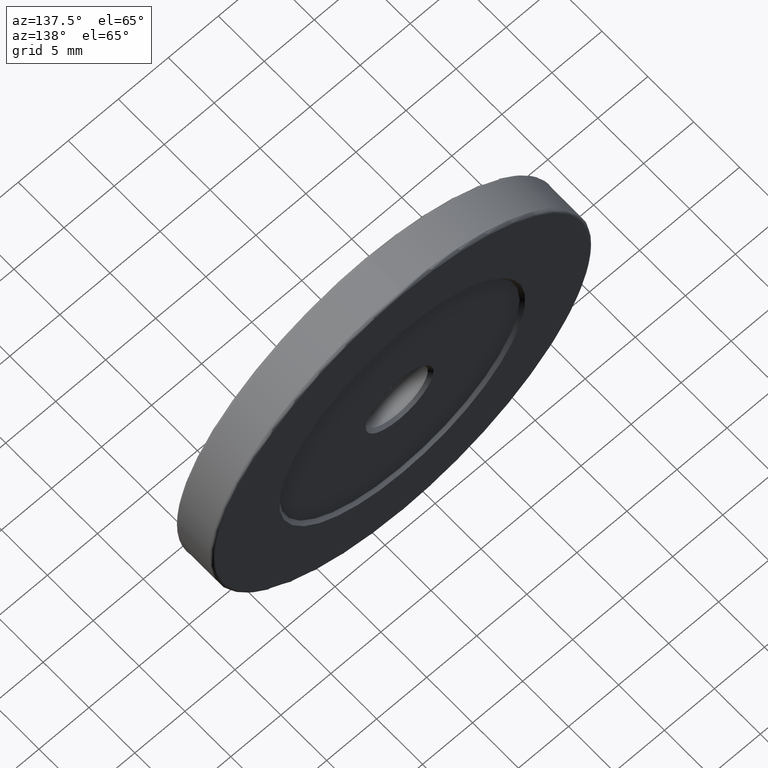
[diagram: clean part render]
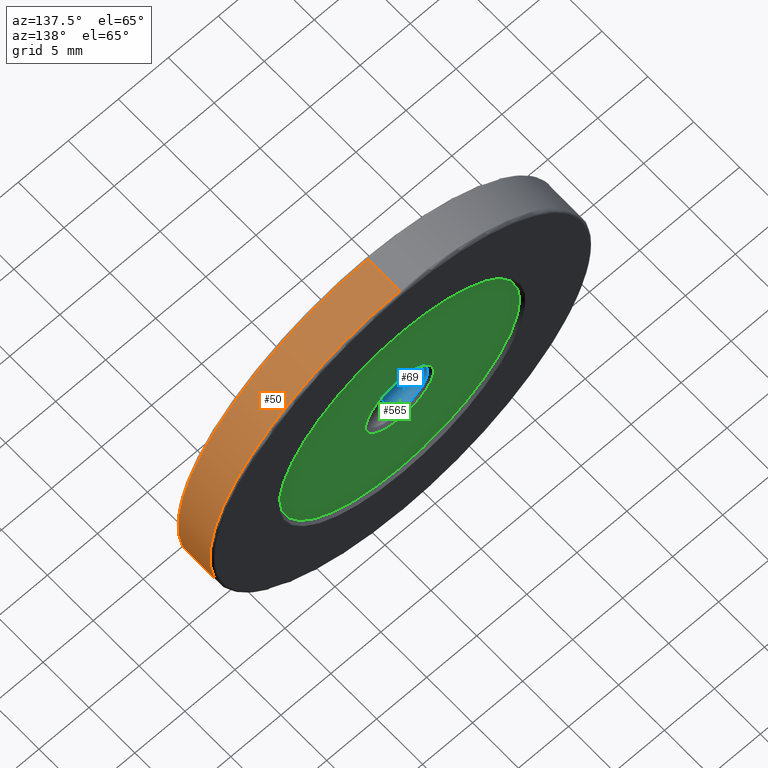
[diagram: same view with three faces highlighted in distinct colors, each labeled with its STEP entity id]
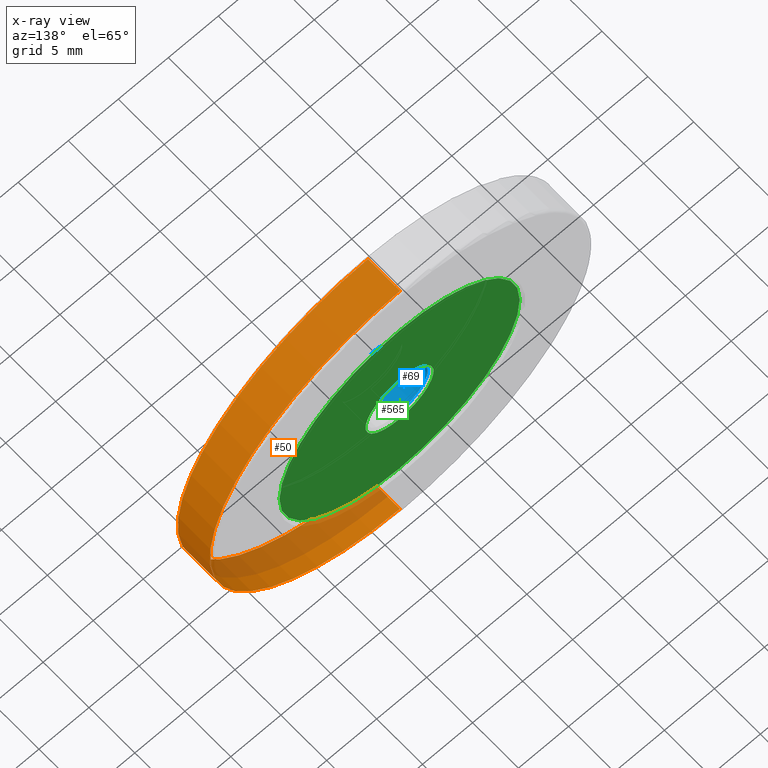
[diagram: x-ray of the same camera — body ghosted, the three highlighted faces saturated]
A machine part, auxiliary view with three faces highlighted in distinct colors.
The next image is the same camera in x-ray (body ghosted, the three faces saturated) — at least one of them is partly hidden behind the body in this view.
Their STEP definitions:

[orange] entity #50 — the highlighted cylindrical surface (partial cylindrical patch) has radius 19 mm, axis along (-0, -1, -0).
#11 = DIRECTION ( 'NONE',  ( -0.000000000000000000, -1.000000000000000000, -0.000000000000000000 ) ) ;
#23 = EDGE_CURVE ( 'NONE', #163, #558, #190, .T. ) ;
#32 = CARTESIAN_POINT ( 'NONE',  ( -7.546808913101048510, -1.143595127302727832, 56.99999999999999289 ) ) ;
#50 = ADVANCED_FACE ( 'NONE', ( #99 ), #521, .T. ) ;
#51 = CARTESIAN_POINT ( 'NONE',  ( -7.546808913101045846, -4.643595127302727832, 56.99999999999999289 ) ) ;
#54 = AXIS2_PLACEMENT_3D ( 'NONE', #101, #188, #294 ) ;
#71 = DIRECTION ( 'NONE',  ( -0.000000000000000000, -1.000000000000000000, -0.000000000000000000 ) ) ;
#85 = ORIENTED_EDGE ( 'NONE', *, *, #23, .T. ) ;
#90 = CARTESIAN_POINT ( 'NONE',  ( -7.546808913101048510, -4.643595127302727832, 19.00000000000000000 ) ) ;
#92 = EDGE_CURVE ( 'NONE', #225, #439, #242, .T. ) ;
#96 = AXIS2_PLACEMENT_3D ( 'NONE', #112, #494, #162 ) ;
#99 = FACE_OUTER_BOUND ( 'NONE', #581, .T. ) ;
#101 = CARTESIAN_POINT ( 'NONE',  ( -7.546808913101048510, -0.8935951273027278319, 38.00000000000000000 ) ) ;
#112 = CARTESIAN_POINT ( 'NONE',  ( -7.546808913101048510, -4.643595127302727832, 38.00000000000000000 ) ) ;
#124 = VECTOR ( 'NONE', #11, 1000.000000000000000 ) ;
#147 = EDGE_CURVE ( 'NONE', #558, #439, #224, .T. ) ;
#162 = DIRECTION ( 'NONE',  ( 0.000000000000000000, 0.000000000000000000, 1.000000000000000000 ) ) ;
#163 = VERTEX_POINT ( 'NONE', #32 ) ;
#166 = ORIENTED_EDGE ( 'NONE', *, *, #180, .T. ) ;
#173 = CARTESIAN_POINT ( 'NONE',  ( -7.546808913101044958, -1.143595127302727832, 19.00000000000000000 ) ) ;
#177 = ORIENTED_EDGE ( 'NONE', *, *, #147, .T. ) ;
#180 = EDGE_CURVE ( 'NONE', #225, #163, #435, .T. ) ;
#188 = DIRECTION ( 'NONE',  ( -0.000000000000000000, -1.000000000000000000, -0.000000000000000000 ) ) ;
#190 = LINE ( 'NONE', #566, #413 ) ;
#195 = AXIS2_PLACEMENT_3D ( 'NONE', #549, #71, #350 ) ;
#224 = CIRCLE ( 'NONE', #96, 18.99999999999999645 ) ;
#225 = VERTEX_POINT ( 'NONE', #173 ) ;
#242 = LINE ( 'NONE', #431, #124 ) ;
#294 = DIRECTION ( 'NONE',  ( 0.000000000000000000, 0.000000000000000000, -1.000000000000000000 ) ) ;
#350 = DIRECTION ( 'NONE',  ( 0.000000000000000000, 0.000000000000000000, 1.000000000000000000 ) ) ;
#373 = DIRECTION ( 'NONE',  ( -0.000000000000000000, -1.000000000000000000, -0.000000000000000000 ) ) ;
#413 = VECTOR ( 'NONE', #373, 1000.000000000000000 ) ;
#431 = CARTESIAN_POINT ( 'NONE',  ( -7.546808913101048510, -0.8935951273027278319, 19.00000000000000000 ) ) ;
#435 = CIRCLE ( 'NONE', #195, 18.99999999999999645 ) ;
#439 = VERTEX_POINT ( 'NONE', #90 ) ;
#443 = ORIENTED_EDGE ( 'NONE', *, *, #92, .F. ) ;
#494 = DIRECTION ( 'NONE',  ( 0.000000000000000000, 1.000000000000000000, 0.000000000000000000 ) ) ;
#521 = CYLINDRICAL_SURFACE ( 'NONE', #54, 19.00000000000000000 ) ;
#549 = CARTESIAN_POINT ( 'NONE',  ( -7.546808913101048510, -1.143595127302727832, 38.00000000000000000 ) ) ;
#558 = VERTEX_POINT ( 'NONE', #51 ) ;
#566 = CARTESIAN_POINT ( 'NONE',  ( -7.546808913101045846, -0.8935951273027278319, 56.99999999999999289 ) ) ;
#581 = EDGE_LOOP ( 'NONE', ( #166, #85, #177, #443 ) ) ;

[blue] entity #69 — the highlighted cylindrical surface (partial cylindrical patch) has radius 3.1 mm, axis along (-0, 1, -0).
#15 = CARTESIAN_POINT ( 'NONE',  ( -7.546808913101048510, -1.493595127302719483, 34.89999999999999858 ) ) ;
#47 = CARTESIAN_POINT ( 'NONE',  ( -7.546808913101048510, -4.293595127302728187, 34.89999999999999858 ) ) ;
#63 = CIRCLE ( 'NONE', #95, 3.099999999999998757 ) ;
#69 = ADVANCED_FACE ( 'NONE', ( #152 ), #105, .F. ) ;
#74 = VECTOR ( 'NONE', #325, 1000.000000000000000 ) ;
#77 = AXIS2_PLACEMENT_3D ( 'NONE', #255, #481, #145 ) ;
#95 = AXIS2_PLACEMENT_3D ( 'NONE', #427, #115, #261 ) ;
#103 = ORIENTED_EDGE ( 'NONE', *, *, #107, .F. ) ;
#105 = CYLINDRICAL_SURFACE ( 'NONE', #77, 3.099999999999998757 ) ;
#107 = EDGE_CURVE ( 'NONE', #584, #214, #300, .T. ) ;
#115 = DIRECTION ( 'NONE',  ( -0.000000000000000000, -1.000000000000000000, -0.000000000000000000 ) ) ;
#131 = CARTESIAN_POINT ( 'NONE',  ( -7.546808913101048510, -4.893595127302727832, 34.89999999999999858 ) ) ;
#145 = DIRECTION ( 'NONE',  ( 0.000000000000000000, 0.000000000000000000, 1.000000000000000000 ) ) ;
#150 = AXIS2_PLACEMENT_3D ( 'NONE', #313, #588, #220 ) ;
#152 = FACE_OUTER_BOUND ( 'NONE', #302, .T. ) ;
#171 = EDGE_CURVE ( 'NONE', #594, #214, #336, .T. ) ;
#214 = VERTEX_POINT ( 'NONE', #360 ) ;
#218 = ORIENTED_EDGE ( 'NONE', *, *, #554, .T. ) ;
#220 = DIRECTION ( 'NONE',  ( 0.000000000000000000, 0.000000000000000000, 1.000000000000000000 ) ) ;
#255 = CARTESIAN_POINT ( 'NONE',  ( -7.546808913101048510, -4.893595127302727832, 38.00000000000000000 ) ) ;
#261 = DIRECTION ( 'NONE',  ( 0.000000000000000000, 0.000000000000000000, -1.000000000000000000 ) ) ;
#299 = ORIENTED_EDGE ( 'NONE', *, *, #171, .T. ) ;
#300 = LINE ( 'NONE', #474, #388 ) ;
#302 = EDGE_LOOP ( 'NONE', ( #218, #304, #299, #103 ) ) ;
#304 = ORIENTED_EDGE ( 'NONE', *, *, #471, .T. ) ;
#313 = CARTESIAN_POINT ( 'NONE',  ( -7.546808913101048510, -1.493595127302719483, 38.00000000000000000 ) ) ;
#325 = DIRECTION ( 'NONE',  ( -0.000000000000000000, 1.000000000000000000, -0.000000000000000000 ) ) ;
#336 = CIRCLE ( 'NONE', #150, 3.099999999999998757 ) ;
#341 = CARTESIAN_POINT ( 'NONE',  ( -7.546808913101048510, -4.293595127302728187, 41.09999999999999432 ) ) ;
#342 = DIRECTION ( 'NONE',  ( -0.000000000000000000, 1.000000000000000000, -0.000000000000000000 ) ) ;
#359 = VERTEX_POINT ( 'NONE', #47 ) ;
#360 = CARTESIAN_POINT ( 'NONE',  ( -7.546808913101048510, -1.493595127302719483, 41.09999999999999432 ) ) ;
#388 = VECTOR ( 'NONE', #342, 1000.000000000000000 ) ;
#427 = CARTESIAN_POINT ( 'NONE',  ( -7.546808913101048510, -4.293595127302728187, 38.00000000000000000 ) ) ;
#471 = EDGE_CURVE ( 'NONE', #359, #594, #556, .T. ) ;
#474 = CARTESIAN_POINT ( 'NONE',  ( -7.546808913101048510, -4.893595127302727832, 41.09999999999999432 ) ) ;
#481 = DIRECTION ( 'NONE',  ( -0.000000000000000000, 1.000000000000000000, -0.000000000000000000 ) ) ;
#554 = EDGE_CURVE ( 'NONE', #584, #359, #63, .T. ) ;
#556 = LINE ( 'NONE', #131, #74 ) ;
#584 = VERTEX_POINT ( 'NONE', #341 ) ;
#588 = DIRECTION ( 'NONE',  ( 0.000000000000000000, 1.000000000000000000, 0.000000000000000000 ) ) ;
#594 = VERTEX_POINT ( 'NONE', #15 ) ;

[green] entity #565 — the highlighted planar face has unit normal (0, 1, 0).
#8 = FACE_BOUND ( 'NONE', #436, .T. ) ;
#21 = DIRECTION ( 'NONE',  ( 0.000000000000000000, 1.000000000000000000, 0.000000000000000000 ) ) ;
#30 = ORIENTED_EDGE ( 'NONE', *, *, #256, .T. ) ;
#35 = DIRECTION ( 'NONE',  ( 0.000000000000000000, 1.000000000000000000, 0.000000000000000000 ) ) ;
#65 = FACE_OUTER_BOUND ( 'NONE', #79, .T. ) ;
#79 = EDGE_LOOP ( 'NONE', ( #531, #30 ) ) ;
#102 = PLANE ( 'NONE',  #609 ) ;
#184 = DIRECTION ( 'NONE',  ( 0.000000000000000000, 0.000000000000000000, 1.000000000000000000 ) ) ;
#187 = AXIS2_PLACEMENT_3D ( 'NONE', #457, #35, #213 ) ;
#196 = DIRECTION ( 'NONE',  ( 0.000000000000000000, 1.000000000000000000, 0.000000000000000000 ) ) ;
#200 = VERTEX_POINT ( 'NONE', #407 ) ;
#202 = CIRCLE ( 'NONE', #335, 3.400000000000000355 ) ;
#213 = DIRECTION ( 'NONE',  ( 0.000000000000000000, 0.000000000000000000, 1.000000000000000000 ) ) ;
#232 = DIRECTION ( 'NONE',  ( -0.000000000000000000, -1.000000000000000000, -0.000000000000000000 ) ) ;
#239 = VERTEX_POINT ( 'NONE', #366 ) ;
#251 = CIRCLE ( 'NONE', #484, 3.400000000000000355 ) ;
#256 = EDGE_CURVE ( 'NONE', #346, #239, #378, .T. ) ;
#258 = CARTESIAN_POINT ( 'NONE',  ( -7.546808913101048510, -1.193595127302727876, 38.00000000000000000 ) ) ;
#265 = AXIS2_PLACEMENT_3D ( 'NONE', #258, #196, #389 ) ;
#283 = CARTESIAN_POINT ( 'NONE',  ( -7.546808913101048510, -1.193595127302727876, 41.39999999999999858 ) ) ;
#291 = DIRECTION ( 'NONE',  ( 0.000000000000000000, 0.000000000000000000, 1.000000000000000000 ) ) ;
#293 = CARTESIAN_POINT ( 'NONE',  ( -7.546808913101048510, -1.193595127302727876, 38.00000000000000000 ) ) ;
#297 = DIRECTION ( 'NONE',  ( 0.000000000000000000, -0.000000000000000000, 1.000000000000000000 ) ) ;
#335 = AXIS2_PLACEMENT_3D ( 'NONE', #560, #232, #184 ) ;
#346 = VERTEX_POINT ( 'NONE', #469 ) ;
#348 = ORIENTED_EDGE ( 'NONE', *, *, #419, .T. ) ;
#366 = CARTESIAN_POINT ( 'NONE',  ( -7.546808913101048510, -1.193595127302727876, 50.00000000000000000 ) ) ;
#378 = CIRCLE ( 'NONE', #187, 12.00000000000000355 ) ;
#389 = DIRECTION ( 'NONE',  ( 0.000000000000000000, 0.000000000000000000, 1.000000000000000000 ) ) ;
#400 = EDGE_CURVE ( 'NONE', #200, #447, #251, .T. ) ;
#407 = CARTESIAN_POINT ( 'NONE',  ( -7.546808913101048510, -1.193595127302727876, 34.60000000000000142 ) ) ;
#419 = EDGE_CURVE ( 'NONE', #447, #200, #202, .T. ) ;
#421 = CIRCLE ( 'NONE', #265, 12.00000000000000355 ) ;
#436 = EDGE_LOOP ( 'NONE', ( #348, #525 ) ) ;
#447 = VERTEX_POINT ( 'NONE', #283 ) ;
#457 = CARTESIAN_POINT ( 'NONE',  ( -7.546808913101048510, -1.193595127302727876, 38.00000000000000000 ) ) ;
#469 = CARTESIAN_POINT ( 'NONE',  ( -7.546808913101046734, -1.193595127302727876, 25.99999999999999645 ) ) ;
#484 = AXIS2_PLACEMENT_3D ( 'NONE', #568, #517, #291 ) ;
#517 = DIRECTION ( 'NONE',  ( -0.000000000000000000, -1.000000000000000000, -0.000000000000000000 ) ) ;
#525 = ORIENTED_EDGE ( 'NONE', *, *, #400, .T. ) ;
#531 = ORIENTED_EDGE ( 'NONE', *, *, #573, .T. ) ;
#560 = CARTESIAN_POINT ( 'NONE',  ( -7.546808913101048510, -1.193595127302727876, 38.00000000000000000 ) ) ;
#565 = ADVANCED_FACE ( 'NONE', ( #8, #65 ), #102, .T. ) ;
#568 = CARTESIAN_POINT ( 'NONE',  ( -7.546808913101048510, -1.193595127302727876, 38.00000000000000000 ) ) ;
#573 = EDGE_CURVE ( 'NONE', #239, #346, #421, .T. ) ;
#609 = AXIS2_PLACEMENT_3D ( 'NONE', #293, #21, #297 ) ;